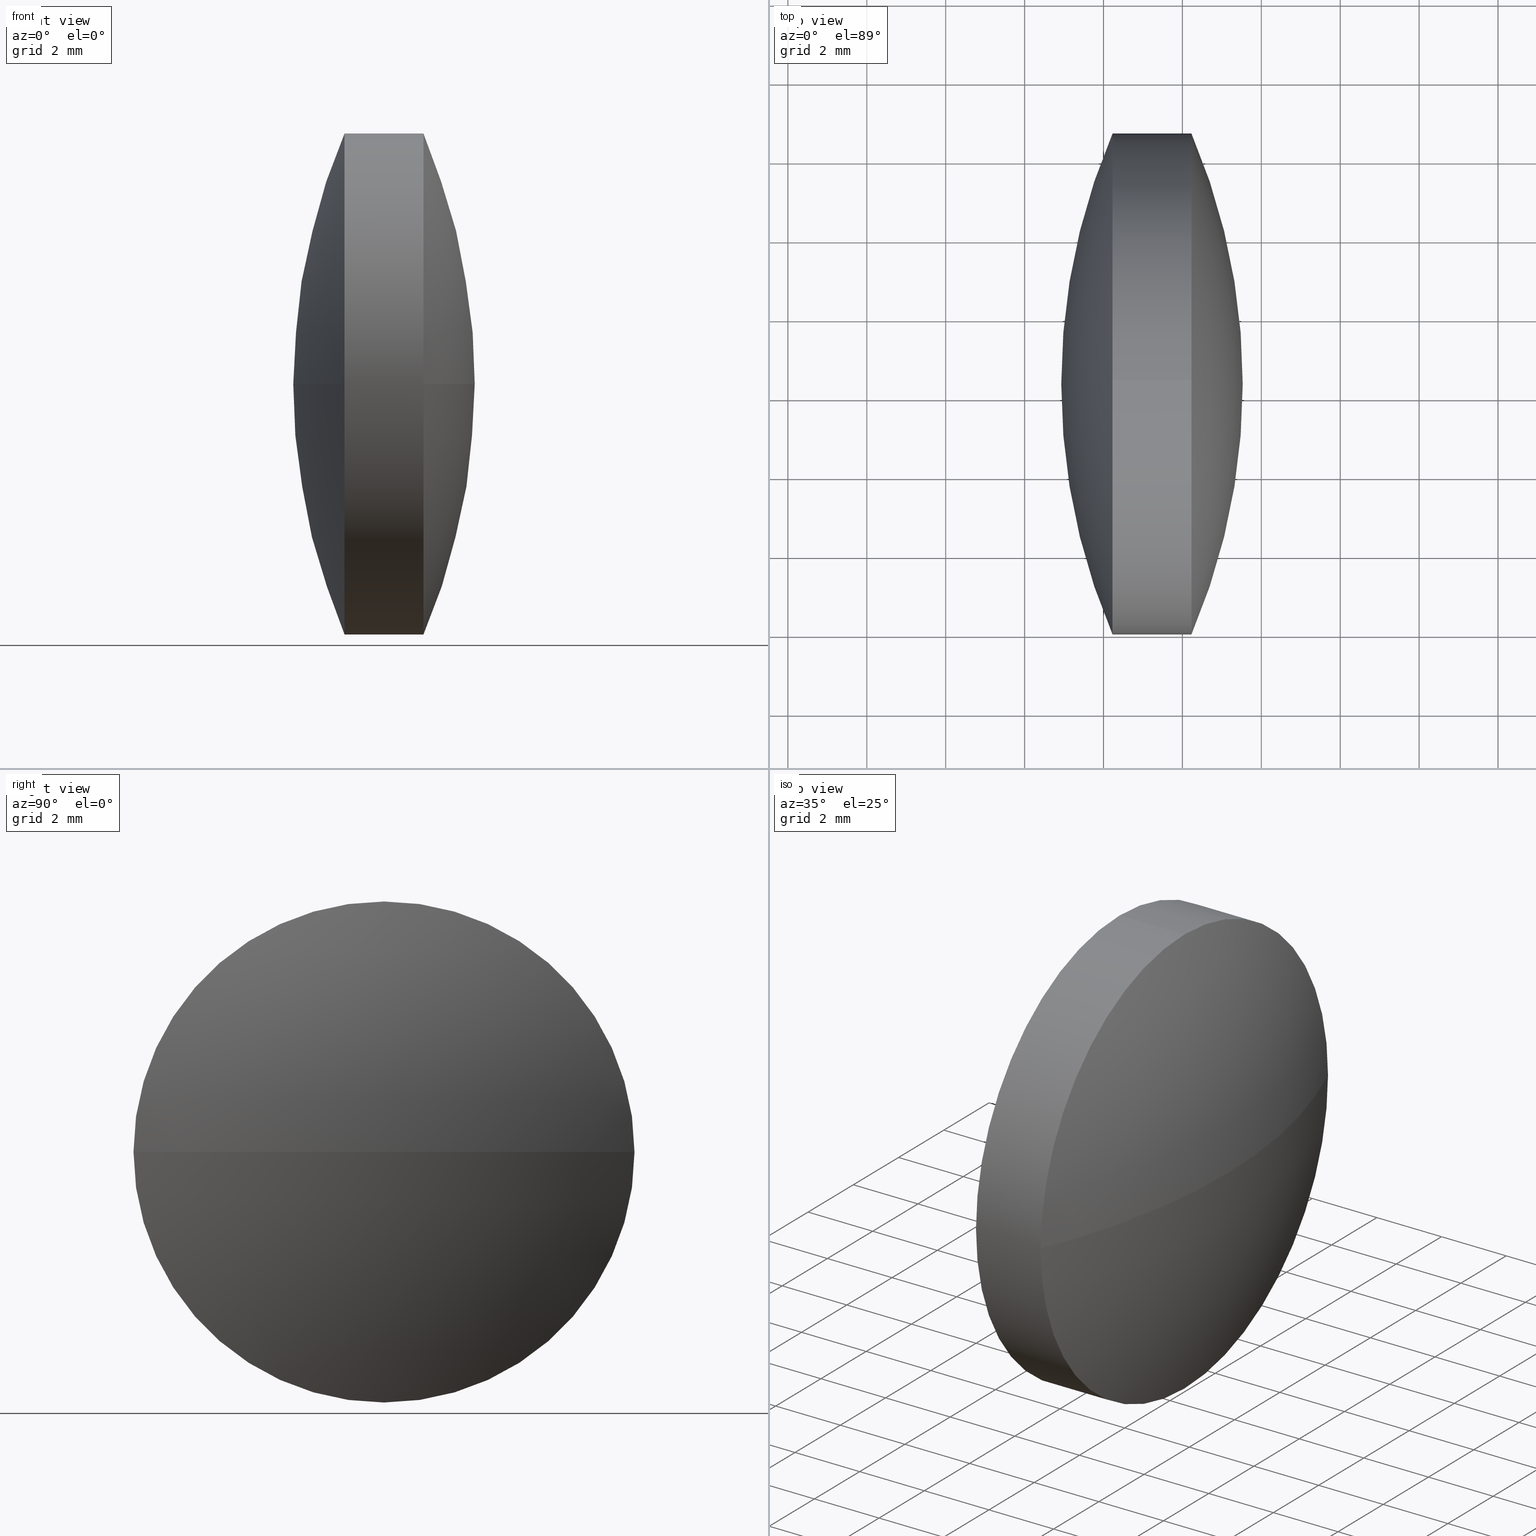
[diagram: canonical four-view strip — front | top / right | iso, engineering-drawing reading convention]
A machine part, canonical four-view strip (front | top / right | iso — engineering-drawing reading convention). The complete STEP part file that produces these views, byte-faithful:
ISO-10303-21;
HEADER;
FILE_DESCRIPTION (( 'STEP AP203' ),
    '1' );
FILE_NAME ('110137.STEP',
    '2019-07-08T08:47:33',
    ( '' ),
    ( '' ),
    'SwSTEP 2.0',
    'SolidWorks 2016',
    '' );
FILE_SCHEMA (( 'CONFIG_CONTROL_DESIGN' ));
ENDSEC;

DATA;
#1 = AXIS2_PLACEMENT_3D ( 'NONE', #263, #33, #41 ) ;
#2 = CARTESIAN_POINT ( 'NONE',  ( 42.22906260161698100, 24.30805651159239000, 0.0000000000000000000 ) ) ;
#3 = ORIENTED_EDGE ( 'NONE', *, *, #202, .F. ) ;
#4 = DATE_TIME_ROLE ( 'creation_date' ) ;
#5 = APPROVAL_STATUS ( 'not_yet_approved' ) ;
#6 = FACE_OUTER_BOUND ( 'NONE', #282, .T. ) ;
#7 = ORIENTED_EDGE ( 'NONE', *, *, #13, .F. ) ;
#8 = APPLICATION_CONTEXT ( 'configuration controlled 3d designs of mechanical parts and assemblies' ) ;
#9 = CC_DESIGN_PERSON_AND_ORGANIZATION_ASSIGNMENT ( #210, #39, ( #246 ) ) ;
#10 = PERSON_AND_ORGANIZATION_ROLE ( 'creator' ) ;
#11 = AXIS2_PLACEMENT_3D ( 'NONE', #108, #128, #316 ) ;
#12 = ORIENTED_EDGE ( 'NONE', *, *, #202, .T. ) ;
#13 = EDGE_CURVE ( 'NONE', #26, #312, #109, .T. ) ;
#14 = VECTOR ( 'NONE', #30, 1000.000000000000000 ) ;
#15 = DIRECTION ( 'NONE',  ( -1.000000000000000000, 0.0000000000000000000, 0.0000000000000000000 ) ) ;
#16 = CC_DESIGN_PERSON_AND_ORGANIZATION_ASSIGNMENT ( #189, #188, ( #110 ) ) ;
#17 = ORIENTED_EDGE ( 'NONE', *, *, #117, .F. ) ;
#18 = DIRECTION ( 'NONE',  ( 0.0000000000000000000, 0.0000000000000000000, 1.000000000000000000 ) ) ;
#19 = SPHERICAL_SURFACE ( 'NONE', #166, 16.15938865267676400 ) ;
#20 = CARTESIAN_POINT ( 'NONE',  ( 44.22913117304555200, 24.30805651159239000, 0.0000000000000000000 ) ) ;
#21 = DATE_AND_TIME ( #178, #201 ) ;
#22 = DIRECTION ( 'NONE',  ( -1.000000000000000000, -0.0000000000000000000, -0.0000000000000000000 ) ) ;
#23 = EDGE_CURVE ( 'NONE', #148, #288, #187, .T. ) ;
#24 = FACE_OUTER_BOUND ( 'NONE', #50, .T. ) ;
#25 = CARTESIAN_POINT ( 'NONE',  ( 29.36967823465456800, 24.30805651159240100, 0.0000000000000000000 ) ) ;
#26 = VERTEX_POINT ( 'NONE', #286 ) ;
#27 = ADVANCED_FACE ( 'NONE', ( #311 ), #65, .T. ) ;
#28 = CARTESIAN_POINT ( 'NONE',  ( 57.08851554000803900, 24.30805651159238700, 0.0000000000000000000 ) ) ;
#29 = ADVANCED_FACE ( 'NONE', ( #24 ), #198, .T. ) ;
#30 = DIRECTION ( 'NONE',  ( -1.000000000000000000, -0.0000000000000000000, -0.0000000000000000000 ) ) ;
#31 = ORIENTED_EDGE ( 'NONE', *, *, #337, .F. ) ;
#32 = AXIS2_PLACEMENT_3D ( 'NONE', #25, #338, #254 ) ;
#33 = DIRECTION ( 'NONE',  ( 0.0000000000000000000, 0.0000000000000000000, 1.000000000000000000 ) ) ;
#34 = CIRCLE ( 'NONE', #73, 16.15938865267670000 ) ;
#35 = CARTESIAN_POINT ( 'NONE',  ( 42.22906260161698100, 24.30805651159239000, 0.0000000000000000000 ) ) ;
#36 = APPROVAL_PERSON_ORGANIZATION ( #75, #331, #267 ) ;
#37 = LOCAL_TIME ( 16, 47, 33.00000000000000000, #79 ) ;
#38 = PERSON_AND_ORGANIZATION_ROLE ( 'creator' ) ;
#39 = PERSON_AND_ORGANIZATION_ROLE ( 'creator' ) ;
#40 = VERTEX_POINT ( 'NONE', #283 ) ;
#41 = DIRECTION ( 'NONE',  ( 1.000000000000000000, 0.0000000000000000000, 0.0000000000000000000 ) ) ;
#42 = APPROVAL_ROLE ( '' ) ;
#43 = AXIS2_PLACEMENT_3D ( 'NONE', #258, #88, #57 ) ;
#44 = SECURITY_CLASSIFICATION ( '', '', #214 ) ;
#45 = APPROVAL_STATUS ( 'not_yet_approved' ) ;
#46 = CC_DESIGN_PERSON_AND_ORGANIZATION_ASSIGNMENT ( #299, #38, ( #101 ) ) ;
#47 = CALENDAR_DATE ( 2019, 8, 7 ) ;
#48 = CC_DESIGN_SECURITY_CLASSIFICATION ( #138, ( #246 ) ) ;
#49 = CIRCLE ( 'NONE', #173, 6.349999999999997900 ) ;
#50 = EDGE_LOOP ( 'NONE', ( #199, #305, #12, #85, #142, #278 ) ) ;
#51 = EDGE_CURVE ( 'NONE', #212, #288, #121, .T. ) ;
#52 = CC_DESIGN_DATE_AND_TIME_ASSIGNMENT ( #272, #162, ( #138 ) ) ;
#53 = APPROVAL_DATE_TIME ( #120, #140 ) ;
#54 = DIRECTION ( 'NONE',  ( 0.0000000000000000000, 0.0000000000000000000, -1.000000000000000000 ) ) ;
#55 = CARTESIAN_POINT ( 'NONE',  ( 29.36967823465456800, 24.30805651159240100, 0.0000000000000000000 ) ) ;
#56 = CALENDAR_DATE ( 2019, 8, 7 ) ;
#57 = DIRECTION ( 'NONE',  ( 0.0000000000000000000, 0.0000000000000000000, 1.000000000000000000 ) ) ;
#58 = AXIS2_PLACEMENT_3D ( 'NONE', #35, #111, #261 ) ;
#59 = ADVANCED_FACE ( 'NONE', ( #96 ), #174, .T. ) ;
#60 = EDGE_LOOP ( 'NONE', ( #218, #242, #31, #3 ) ) ;
#61 = CARTESIAN_POINT ( 'NONE',  ( 44.22913117304555200, 30.65805651159239500, 7.776507174585687200E-016 ) ) ;
#62 = COORDINATED_UNIVERSAL_TIME_OFFSET ( 8, 0, .AHEAD. ) ;
#63 = CARTESIAN_POINT ( 'NONE',  ( 44.22913117304555200, 24.30805651159239000, 0.0000000000000000000 ) ) ;
#64 = DIRECTION ( 'NONE',  ( -1.000000000000000000, -0.0000000000000000000, -0.0000000000000000000 ) ) ;
#65 = SPHERICAL_SURFACE ( 'NONE', #280, 16.15938865267670000 ) ;
#66 = APPROVAL_ROLE ( '' ) ;
#67 = CALENDAR_DATE ( 2019, 8, 7 ) ;
#68 = EDGE_CURVE ( 'NONE', #155, #40, #170, .T. ) ;
#69 =( NAMED_UNIT ( * ) PLANE_ANGLE_UNIT ( ) SI_UNIT ( $, .RADIAN. ) );
#70 = SPHERICAL_SURFACE ( 'NONE', #98, 16.15938865267676400 ) ;
#71 = PRODUCT_DEFINITION_SHAPE ( 'NONE', 'NONE',  #110 ) ;
#72 = PERSON_AND_ORGANIZATION ( #252, #177 ) ;
#73 = AXIS2_PLACEMENT_3D ( 'NONE', #319, #205, #344 ) ;
#74 = CC_DESIGN_APPROVAL ( #306, ( #138 ) ) ;
#75 = PERSON_AND_ORGANIZATION ( #252, #177 ) ;
#76 = ORIENTED_EDGE ( 'NONE', *, *, #23, .F. ) ;
#77 = AXIS2_PLACEMENT_3D ( 'NONE', #181, #64, #158 ) ;
#78 = DATE_AND_TIME ( #47, #145 ) ;
#79 = COORDINATED_UNIVERSAL_TIME_OFFSET ( 8, 0, .AHEAD. ) ;
#80 = CARTESIAN_POINT ( 'NONE',  ( 39.65270067541857900, 24.30805651159239000, 0.0000000000000000000 ) ) ;
#81 = CC_DESIGN_PERSON_AND_ORGANIZATION_ASSIGNMENT ( #276, #116, ( #101 ) ) ;
#82 = ORIENTED_EDGE ( 'NONE', *, *, #151, .T. ) ;
#83 = DIRECTION ( 'NONE',  ( 0.0000000000000000000, 0.0000000000000000000, 1.000000000000000000 ) ) ;
#84 = CYLINDRICAL_SURFACE ( 'NONE', #137, 6.349999999999997900 ) ;
#85 = ORIENTED_EDGE ( 'NONE', *, *, #156, .T. ) ;
#86 = DIRECTION ( 'NONE',  ( -0.0000000000000000000, 0.0000000000000000000, -1.000000000000000000 ) ) ;
#87 = ADVANCED_FACE ( 'NONE', ( #152 ), #84, .T. ) ;
#88 = DIRECTION ( 'NONE',  ( -1.000000000000000000, -0.0000000000000000000, -0.0000000000000000000 ) ) ;
#89 = PERSON_AND_ORGANIZATION ( #252, #177 ) ;
#90 = CARTESIAN_POINT ( 'NONE',  ( 42.22906260161698100, 24.30805651159239000, -6.349999999999997900 ) ) ;
#91 = CARTESIAN_POINT ( 'NONE',  ( 44.22913117304555200, 24.30805651159239000, 0.0000000000000000000 ) ) ;
#92 = LINE ( 'NONE', #130, #122 ) ;
#93 = APPROVAL_STATUS ( 'not_yet_approved' ) ;
#94 = CC_DESIGN_PERSON_AND_ORGANIZATION_ASSIGNMENT ( #72, #118, ( #275 ) ) ;
#95 = DIRECTION ( 'NONE',  ( 1.000000000000000000, 0.0000000000000000000, 0.0000000000000000000 ) ) ;
#96 = FACE_OUTER_BOUND ( 'NONE', #60, .T. ) ;
#97 = DATE_TIME_ROLE ( 'creation_date' ) ;
#98 = AXIS2_PLACEMENT_3D ( 'NONE', #159, #86, #233 ) ;
#99 = COORDINATED_UNIVERSAL_TIME_OFFSET ( 8, 0, .AHEAD. ) ;
#100 = EDGE_LOOP ( 'NONE', ( #193, #206, #76, #131 ) ) ;
#101 = PRODUCT_DEFINITION_FORMATION_WITH_SPECIFIED_SOURCE ( '�κ�', '', #310, .NOT_KNOWN. ) ;
#102 = APPROVAL_DATE_TIME ( #250, #313 ) ;
#103 = APPROVAL_PERSON_ORGANIZATION ( #185, #140, #164 ) ;
#104 = ORIENTED_EDGE ( 'NONE', *, *, #117, .T. ) ;
#105 = CC_DESIGN_PERSON_AND_ORGANIZATION_ASSIGNMENT ( #273, #216, ( #246 ) ) ;
#106 = COORDINATED_UNIVERSAL_TIME_OFFSET ( 8, 0, .AHEAD. ) ;
#107 = PRODUCT_DEFINITION ( 'δ֪', '', #246, #207 ) ;
#108 = CARTESIAN_POINT ( 'NONE',  ( 57.08851554000803900, 24.30805651159238700, 0.0000000000000000000 ) ) ;
#109 = CIRCLE ( 'NONE', #112, 6.349999999999997900 ) ;
#110 = PRODUCT_DEFINITION ( 'δ֪', '', #101, #314 ) ;
#111 = DIRECTION ( 'NONE',  ( -1.000000000000000000, -0.0000000000000000000, -0.0000000000000000000 ) ) ;
#112 = AXIS2_PLACEMENT_3D ( 'NONE', #228, #339, #281 ) ;
#113 = CARTESIAN_POINT ( 'NONE',  ( 42.22906260161698100, 17.95805651159239200, -7.776507174585689200E-016 ) ) ;
#114 = APPROVAL_PERSON_ORGANIZATION ( #315, #257, #219 ) ;
#115 =( NAMED_UNIT ( * ) SI_UNIT ( $, .STERADIAN. ) SOLID_ANGLE_UNIT ( ) );
#116 = PERSON_AND_ORGANIZATION_ROLE ( 'design_supplier' ) ;
#117 = EDGE_CURVE ( 'NONE', #26, #40, #334, .T. ) ;
#118 = PERSON_AND_ORGANIZATION_ROLE ( 'design_owner' ) ;
#119 = EDGE_CURVE ( 'NONE', #155, #237, #274, .T. ) ;
#120 = DATE_AND_TIME ( #332, #124 ) ;
#121 = CIRCLE ( 'NONE', #123, 16.15938865267670000 ) ;
#122 = VECTOR ( 'NONE', #161, 1000.000000000000000 ) ;
#123 = AXIS2_PLACEMENT_3D ( 'NONE', #125, #54, #15 ) ;
#124 = LOCAL_TIME ( 16, 47, 33.00000000000000000, #163 ) ;
#125 = CARTESIAN_POINT ( 'NONE',  ( 29.36967823465456800, 24.30805651159240100, 0.0000000000000000000 ) ) ;
#126 = ORIENTED_EDGE ( 'NONE', *, *, #197, .F. ) ;
#127 = AXIS2_PLACEMENT_3D ( 'NONE', #63, #238, #323 ) ;
#128 = DIRECTION ( 'NONE',  ( 0.0000000000000000000, 1.224646799147353200E-016, -1.000000000000000000 ) ) ;
#129 = EDGE_CURVE ( 'NONE', #312, #155, #192, .T. ) ;
#130 = CARTESIAN_POINT ( 'NONE',  ( 39.65270067541857900, 24.30805651159239000, 6.349999999999997900 ) ) ;
#131 = ORIENTED_EDGE ( 'NONE', *, *, #168, .F. ) ;
#132 = ADVANCED_FACE ( 'NONE', ( #6 ), #70, .T. ) ;
#133 = CARTESIAN_POINT ( 'NONE',  ( 45.52906688733126800, 24.30805651159240100, 0.0000000000000000000 ) ) ;
#134 = CIRCLE ( 'NONE', #262, 6.349999999999997900 ) ;
#135 = APPROVAL_PERSON_ORGANIZATION ( #290, #306, #66 ) ;
#136 = CALENDAR_DATE ( 2019, 8, 7 ) ;
#137 = AXIS2_PLACEMENT_3D ( 'NONE', #80, #204, #83 ) ;
#138 = SECURITY_CLASSIFICATION ( '', '', #266 ) ;
#139 = MECHANICAL_CONTEXT ( 'NONE', #8, 'mechanical' ) ;
#140 = APPROVAL ( #165, 'δָ��' ) ;
#141 = APPLICATION_CONTEXT ( 'configuration controlled 3d designs of mechanical parts and assemblies' ) ;
#142 = ORIENTED_EDGE ( 'NONE', *, *, #119, .F. ) ;
#143 = AXIS2_PLACEMENT_3D ( 'NONE', #265, #234, #295 ) ;
#144 = APPROVAL_DATE_TIME ( #172, #306 ) ;
#145 = LOCAL_TIME ( 16, 47, 33.00000000000000000, #209 ) ;
#146 = PERSON_AND_ORGANIZATION ( #252, #177 ) ;
#147 = APPROVAL ( #93, 'δָ��' ) ;
#148 = VERTEX_POINT ( 'NONE', #293 ) ;
#149 = PERSON_AND_ORGANIZATION ( #252, #177 ) ;
#150 = PERSON_AND_ORGANIZATION ( #252, #177 ) ;
#151 = EDGE_CURVE ( 'NONE', #148, #312, #225, .T. ) ;
#152 = FACE_OUTER_BOUND ( 'NONE', #259, .T. ) ;
#153 = CALENDAR_DATE ( 2019, 8, 7 ) ;
#154 = DIRECTION ( 'NONE',  ( 0.0000000000000000000, 0.0000000000000000000, 1.000000000000000000 ) ) ;
#155 = VERTEX_POINT ( 'NONE', #113 ) ;
#156 = EDGE_CURVE ( 'NONE', #294, #237, #92, .T. ) ;
#157 = COORDINATED_UNIVERSAL_TIME_OFFSET ( 8, 0, .AHEAD. ) ;
#158 = DIRECTION ( 'NONE',  ( 0.0000000000000000000, 0.0000000000000000000, 1.000000000000000000 ) ) ;
#159 = CARTESIAN_POINT ( 'NONE',  ( 57.08851554000803900, 24.30805651159238700, 0.0000000000000000000 ) ) ;
#160 = CLOSED_SHELL ( 'NONE', ( #87, #59, #132, #260, #27, #29 ) ) ;
#161 = DIRECTION ( 'NONE',  ( -1.000000000000000000, -0.0000000000000000000, -0.0000000000000000000 ) ) ;
#162 = DATE_TIME_ROLE ( 'classification_date' ) ;
#163 = COORDINATED_UNIVERSAL_TIME_OFFSET ( 8, 0, .AHEAD. ) ;
#164 = APPROVAL_ROLE ( '' ) ;
#165 = APPROVAL_STATUS ( 'not_yet_approved' ) ;
#166 = AXIS2_PLACEMENT_3D ( 'NONE', #28, #211, #182 ) ;
#167 = ORIENTED_EDGE ( 'NONE', *, *, #129, .T. ) ;
#168 = EDGE_CURVE ( 'NONE', #183, #148, #297, .T. ) ;
#169 = APPROVAL_PERSON_ORGANIZATION ( #239, #147, #42 ) ;
#170 = CIRCLE ( 'NONE', #11, 16.15938865267676400 ) ;
#171 = ORIENTED_EDGE ( 'NONE', *, *, #119, .T. ) ;
#172 = DATE_AND_TIME ( #326, #215 ) ;
#173 = AXIS2_PLACEMENT_3D ( 'NONE', #2, #236, #213 ) ;
#174 = SPHERICAL_SURFACE ( 'NONE', #32, 16.15938865267670000 ) ;
#175 = ORIENTED_EDGE ( 'NONE', *, *, #13, .T. ) ;
#176 = CC_DESIGN_PERSON_AND_ORGANIZATION_ASSIGNMENT ( #89, #325, ( #44 ) ) ;
#177 = ORGANIZATION ( 'δָ��', 'δָ��', '' ) ;
#178 = CALENDAR_DATE ( 2019, 8, 7 ) ;
#179 = CC_DESIGN_PERSON_AND_ORGANIZATION_ASSIGNMENT ( #149, #240, ( #310 ) ) ;
#180 = DIRECTION ( 'NONE',  ( -1.000000000000000000, -0.0000000000000000000, -0.0000000000000000000 ) ) ;
#181 = CARTESIAN_POINT ( 'NONE',  ( 44.22913117304555200, 24.30805651159239000, 0.0000000000000000000 ) ) ;
#182 = DIRECTION ( 'NONE',  ( 0.0000000000000000000, 1.000000000000000000, 0.0000000000000000000 ) ) ;
#183 = VERTEX_POINT ( 'NONE', #61 ) ;
#184 = CARTESIAN_POINT ( 'NONE',  ( 0.0000000000000000000, 0.0000000000000000000, 0.0000000000000000000 ) ) ;
#185 = PERSON_AND_ORGANIZATION ( #252, #177 ) ;
#186 = APPLICATION_CONTEXT ( 'configuration controlled 3d designs of mechanical parts and assemblies' ) ;
#187 = CIRCLE ( 'NONE', #289, 6.349999999999997900 ) ;
#188 = PERSON_AND_ORGANIZATION_ROLE ( 'creator' ) ;
#189 = PERSON_AND_ORGANIZATION ( #252, #177 ) ;
#190 = CC_DESIGN_PERSON_AND_ORGANIZATION_ASSIGNMENT ( #321, #10, ( #107 ) ) ;
#191 = APPROVAL_ROLE ( '' ) ;
#192 = CIRCLE ( 'NONE', #58, 6.349999999999997900 ) ;
#193 = ORIENTED_EDGE ( 'NONE', *, *, #270, .F. ) ;
#194 = APPROVAL_STATUS ( 'not_yet_approved' ) ;
#195 = APPROVAL_PERSON_ORGANIZATION ( #150, #313, #191 ) ;
#196 = CC_DESIGN_APPROVAL ( #313, ( #101 ) ) ;
#197 = EDGE_CURVE ( 'NONE', #237, #26, #49, .T. ) ;
#198 = CYLINDRICAL_SURFACE ( 'NONE', #248, 6.349999999999997900 ) ;
#199 = ORIENTED_EDGE ( 'NONE', *, *, #151, .F. ) ;
#200 = CC_DESIGN_APPROVAL ( #140, ( #107 ) ) ;
#201 = LOCAL_TIME ( 16, 47, 33.00000000000000000, #251 ) ;
#202 = EDGE_CURVE ( 'NONE', #288, #294, #134, .T. ) ;
#203 = CC_DESIGN_DATE_AND_TIME_ASSIGNMENT ( #78, #301, ( #44 ) ) ;
#204 = DIRECTION ( 'NONE',  ( -1.000000000000000000, -0.0000000000000000000, -0.0000000000000000000 ) ) ;
#205 = DIRECTION ( 'NONE',  ( 0.0000000000000000000, -1.224646799147353200E-016, 1.000000000000000000 ) ) ;
#206 = ORIENTED_EDGE ( 'NONE', *, *, #51, .T. ) ;
#207 = DESIGN_CONTEXT ( 'detailed design', #245, 'design' ) ;
#208 = CARTESIAN_POINT ( 'NONE',  ( 44.22913117304555200, 24.30805651159239000, 6.349999999999997900 ) ) ;
#209 = COORDINATED_UNIVERSAL_TIME_OFFSET ( 8, 0, .AHEAD. ) ;
#210 = PERSON_AND_ORGANIZATION ( #252, #177 ) ;
#211 = DIRECTION ( 'NONE',  ( -0.0000000000000000000, 0.0000000000000000000, -1.000000000000000000 ) ) ;
#212 = VERTEX_POINT ( 'NONE', #133 ) ;
#213 = DIRECTION ( 'NONE',  ( 0.0000000000000000000, 0.0000000000000000000, 1.000000000000000000 ) ) ;
#214 = SECURITY_CLASSIFICATION_LEVEL ( 'unclassified' ) ;
#215 = LOCAL_TIME ( 16, 47, 33.00000000000000000, #277 ) ;
#216 = PERSON_AND_ORGANIZATION_ROLE ( 'design_supplier' ) ;
#217 =( LENGTH_UNIT ( ) NAMED_UNIT ( * ) SI_UNIT ( .MILLI., .METRE. ) );
#218 = ORIENTED_EDGE ( 'NONE', *, *, #51, .F. ) ;
#219 = APPROVAL_ROLE ( '' ) ;
#220 = LOCAL_TIME ( 16, 47, 33.00000000000000000, #99 ) ;
#221 =( GEOMETRIC_REPRESENTATION_CONTEXT ( 3 ) GLOBAL_UNCERTAINTY_ASSIGNED_CONTEXT ( ( #244 ) ) GLOBAL_UNIT_ASSIGNED_CONTEXT ( ( #217, #69, #115 ) ) REPRESENTATION_CONTEXT ( 'NONE', 'WORKASPACE' ) );
#222 = CIRCLE ( 'NONE', #127, 6.349999999999997900 ) ;
#223 = CC_DESIGN_DATE_AND_TIME_ASSIGNMENT ( #21, #4, ( #107 ) ) ;
#224 = MANIFOLD_SOLID_BREP ( '��ת1', #160 ) ;
#225 = LINE ( 'NONE', #318, #14 ) ;
#226 = ORIENTED_EDGE ( 'NONE', *, *, #156, .F. ) ;
#227 = CC_DESIGN_APPROVAL ( #147, ( #44 ) ) ;
#228 = CARTESIAN_POINT ( 'NONE',  ( 42.22906260161698100, 24.30805651159239000, 0.0000000000000000000 ) ) ;
#229 = DATE_AND_TIME ( #67, #268 ) ;
#230 = DATE_AND_TIME ( #309, #37 ) ;
#231 = CARTESIAN_POINT ( 'NONE',  ( 39.65270067541857900, 24.30805651159239000, 0.0000000000000000000 ) ) ;
#232 = EDGE_LOOP ( 'NONE', ( #329, #171, #342, #104 ) ) ;
#233 = DIRECTION ( 'NONE',  ( 0.0000000000000000000, 1.000000000000000000, 0.0000000000000000000 ) ) ;
#234 = DIRECTION ( 'NONE',  ( -0.0000000000000000000, 0.0000000000000000000, 1.000000000000000000 ) ) ;
#235 = CC_DESIGN_APPROVAL ( #331, ( #110 ) ) ;
#236 = DIRECTION ( 'NONE',  ( -1.000000000000000000, -0.0000000000000000000, -0.0000000000000000000 ) ) ;
#237 = VERTEX_POINT ( 'NONE', #341 ) ;
#238 = DIRECTION ( 'NONE',  ( -1.000000000000000000, -0.0000000000000000000, -0.0000000000000000000 ) ) ;
#239 = PERSON_AND_ORGANIZATION ( #252, #177 ) ;
#240 = PERSON_AND_ORGANIZATION_ROLE ( 'design_owner' ) ;
#241 = DATE_AND_TIME ( #300, #308 ) ;
#242 = ORIENTED_EDGE ( 'NONE', *, *, #270, .T. ) ;
#243 = PERSON_AND_ORGANIZATION_ROLE ( 'classification_officer' ) ;
#244 = UNCERTAINTY_MEASURE_WITH_UNIT (LENGTH_MEASURE( 1.000000000000000100E-005 ), #217, 'distance_accuracy_value', 'NONE');
#245 = APPLICATION_CONTEXT ( 'configuration controlled 3d designs of mechanical parts and assemblies' ) ;
#246 = PRODUCT_DEFINITION_FORMATION_WITH_SPECIFIED_SOURCE ( '�κ�', '', #275, .NOT_KNOWN. ) ;
#247 = ORIENTED_EDGE ( 'NONE', *, *, #337, .T. ) ;
#248 = AXIS2_PLACEMENT_3D ( 'NONE', #231, #180, #154 ) ;
#249 = CC_DESIGN_PERSON_AND_ORGANIZATION_ASSIGNMENT ( #146, #243, ( #138 ) ) ;
#250 = DATE_AND_TIME ( #136, #284 ) ;
#251 = COORDINATED_UNIVERSAL_TIME_OFFSET ( 8, 0, .AHEAD. ) ;
#252 = PERSON ( 'δָ��', 'δָ��', 'δָ��', ('δָ��'), ('δָ��'), ('δָ��') ) ;
#253 = FACE_OUTER_BOUND ( 'NONE', #232, .T. ) ;
#254 = DIRECTION ( 'NONE',  ( 0.0000000000000000000, -1.000000000000000000, 0.0000000000000000000 ) ) ;
#255 = DIRECTION ( 'NONE',  ( 0.0000000000000000000, -1.000000000000000000, 0.0000000000000000000 ) ) ;
#256 = DIRECTION ( 'NONE',  ( 0.0000000000000000000, 0.0000000000000000000, 1.000000000000000000 ) ) ;
#257 = APPROVAL ( #45, 'δָ��' ) ;
#258 = CARTESIAN_POINT ( 'NONE',  ( 42.22906260161698100, 24.30805651159239000, 0.0000000000000000000 ) ) ;
#259 = EDGE_LOOP ( 'NONE', ( #335, #82, #7, #126, #226, #247 ) ) ;
#260 = ADVANCED_FACE ( 'NONE', ( #253 ), #19, .T. ) ;
#261 = DIRECTION ( 'NONE',  ( 0.0000000000000000000, 0.0000000000000000000, 1.000000000000000000 ) ) ;
#262 = AXIS2_PLACEMENT_3D ( 'NONE', #91, #287, #317 ) ;
#263 = CARTESIAN_POINT ( 'NONE',  ( 0.0000000000000000000, 0.0000000000000000000, 0.0000000000000000000 ) ) ;
#264 = APPROVAL_DATE_TIME ( #241, #147 ) ;
#265 = CARTESIAN_POINT ( 'NONE',  ( 57.08851554000803900, 24.30805651159238700, 0.0000000000000000000 ) ) ;
#266 = SECURITY_CLASSIFICATION_LEVEL ( 'unclassified' ) ;
#267 = APPROVAL_ROLE ( '' ) ;
#268 = LOCAL_TIME ( 16, 47, 33.00000000000000000, #320 ) ;
#269 = APPROVAL_STATUS ( 'not_yet_approved' ) ;
#270 = EDGE_CURVE ( 'NONE', #212, #183, #34, .T. ) ;
#271 = ORIENTED_EDGE ( 'NONE', *, *, #68, .T. ) ;
#272 = DATE_AND_TIME ( #56, #285 ) ;
#273 = PERSON_AND_ORGANIZATION ( #252, #177 ) ;
#274 = CIRCLE ( 'NONE', #43, 6.349999999999997900 ) ;
#275 = PRODUCT ( '110137', '110137', '', ( #328 ) ) ;
#276 = PERSON_AND_ORGANIZATION ( #252, #177 ) ;
#277 = COORDINATED_UNIVERSAL_TIME_OFFSET ( 8, 0, .AHEAD. ) ;
#278 = ORIENTED_EDGE ( 'NONE', *, *, #129, .F. ) ;
#279 = APPROVAL_DATE_TIME ( #230, #257 ) ;
#280 = AXIS2_PLACEMENT_3D ( 'NONE', #55, #18, #255 ) ;
#281 = DIRECTION ( 'NONE',  ( 0.0000000000000000000, 0.0000000000000000000, 1.000000000000000000 ) ) ;
#282 = EDGE_LOOP ( 'NONE', ( #175, #167, #271, #17 ) ) ;
#283 = CARTESIAN_POINT ( 'NONE',  ( 40.92912688733127200, 24.30805651159238700, 0.0000000000000000000 ) ) ;
#284 = LOCAL_TIME ( 16, 47, 33.00000000000000000, #62 ) ;
#285 = LOCAL_TIME ( 16, 47, 33.00000000000000000, #157 ) ;
#286 = CARTESIAN_POINT ( 'NONE',  ( 42.22906260161698100, 30.65805651159238800, 0.0000000000000000000 ) ) ;
#287 = DIRECTION ( 'NONE',  ( -1.000000000000000000, -0.0000000000000000000, -0.0000000000000000000 ) ) ;
#288 = VERTEX_POINT ( 'NONE', #291 ) ;
#289 = AXIS2_PLACEMENT_3D ( 'NONE', #20, #22, #256 ) ;
#290 = PERSON_AND_ORGANIZATION ( #252, #177 ) ;
#291 = CARTESIAN_POINT ( 'NONE',  ( 44.22913117304555200, 17.95805651159239600, 0.0000000000000000000 ) ) ;
#292 = CC_DESIGN_DATE_AND_TIME_ASSIGNMENT ( #345, #97, ( #110 ) ) ;
#293 = CARTESIAN_POINT ( 'NONE',  ( 44.22913117304555200, 24.30805651159239000, -6.349999999999997900 ) ) ;
#294 = VERTEX_POINT ( 'NONE', #208 ) ;
#295 = DIRECTION ( 'NONE',  ( 1.000000000000000000, 0.0000000000000000000, 0.0000000000000000000 ) ) ;
#296 = PRODUCT_DEFINITION_SHAPE ( 'NONE', 'NONE',  #107 ) ;
#297 = CIRCLE ( 'NONE', #77, 6.349999999999997900 ) ;
#298 = APPLICATION_PROTOCOL_DEFINITION ( 'international standard', 'config_control_design', 1994, #8 ) ;
#299 = PERSON_AND_ORGANIZATION ( #252, #177 ) ;
#300 = CALENDAR_DATE ( 2019, 8, 7 ) ;
#301 = DATE_TIME_ROLE ( 'classification_date' ) ;
#302 = DIRECTION ( 'NONE',  ( 0.0000000000000000000, 0.0000000000000000000, 1.000000000000000000 ) ) ;
#303 = CC_DESIGN_APPROVAL ( #257, ( #246 ) ) ;
#304 = APPLICATION_PROTOCOL_DEFINITION ( 'international standard', 'config_control_design', 1994, #186 ) ;
#305 = ORIENTED_EDGE ( 'NONE', *, *, #23, .T. ) ;
#306 = APPROVAL ( #269, 'δָ��' ) ;
#307 = CC_DESIGN_SECURITY_CLASSIFICATION ( #44, ( #101 ) ) ;
#308 = LOCAL_TIME ( 16, 47, 33.00000000000000000, #106 ) ;
#309 = CALENDAR_DATE ( 2019, 8, 7 ) ;
#310 = PRODUCT ( '110137', '110137', '', ( #139 ) ) ;
#311 = FACE_OUTER_BOUND ( 'NONE', #100, .T. ) ;
#312 = VERTEX_POINT ( 'NONE', #90 ) ;
#313 = APPROVAL ( #5, 'δָ��' ) ;
#314 = DESIGN_CONTEXT ( 'detailed design', #186, 'design' ) ;
#315 = PERSON_AND_ORGANIZATION ( #252, #177 ) ;
#316 = DIRECTION ( 'NONE',  ( 0.0000000000000000000, 1.000000000000000000, 1.224646799147353200E-016 ) ) ;
#317 = DIRECTION ( 'NONE',  ( 0.0000000000000000000, 0.0000000000000000000, 1.000000000000000000 ) ) ;
#318 = CARTESIAN_POINT ( 'NONE',  ( 39.65270067541857900, 24.30805651159239000, -6.349999999999997900 ) ) ;
#319 = CARTESIAN_POINT ( 'NONE',  ( 29.36967823465456800, 24.30805651159240100, 0.0000000000000000000 ) ) ;
#320 = COORDINATED_UNIVERSAL_TIME_OFFSET ( 8, 0, .AHEAD. ) ;
#321 = PERSON_AND_ORGANIZATION ( #252, #177 ) ;
#322 = PRODUCT_RELATED_PRODUCT_CATEGORY ( 'detail', '', ( #310 ) ) ;
#323 = DIRECTION ( 'NONE',  ( 0.0000000000000000000, 0.0000000000000000000, 1.000000000000000000 ) ) ;
#324 = APPLICATION_PROTOCOL_DEFINITION ( 'international standard', 'config_control_design', 1994, #141 ) ;
#325 = PERSON_AND_ORGANIZATION_ROLE ( 'classification_officer' ) ;
#326 = CALENDAR_DATE ( 2019, 8, 7 ) ;
#327 = APPLICATION_PROTOCOL_DEFINITION ( 'international standard', 'config_control_design', 1994, #245 ) ;
#328 = MECHANICAL_CONTEXT ( 'NONE', #141, 'mechanical' ) ;
#329 = ORIENTED_EDGE ( 'NONE', *, *, #68, .F. ) ;
#330 = ADVANCED_BREP_SHAPE_REPRESENTATION ( '110137', ( #224, #1 ), #221 ) ;
#331 = APPROVAL ( #194, 'δָ��' ) ;
#332 = CALENDAR_DATE ( 2019, 8, 7 ) ;
#333 = APPROVAL_DATE_TIME ( #229, #331 ) ;
#334 = CIRCLE ( 'NONE', #143, 16.15938865267676400 ) ;
#335 = ORIENTED_EDGE ( 'NONE', *, *, #168, .T. ) ;
#336 = PRODUCT_RELATED_PRODUCT_CATEGORY ( 'detail', '', ( #275 ) ) ;
#337 = EDGE_CURVE ( 'NONE', #294, #183, #222, .T. ) ;
#338 = DIRECTION ( 'NONE',  ( 0.0000000000000000000, 0.0000000000000000000, 1.000000000000000000 ) ) ;
#339 = DIRECTION ( 'NONE',  ( -1.000000000000000000, -0.0000000000000000000, -0.0000000000000000000 ) ) ;
#340 = AXIS2_PLACEMENT_3D ( 'NONE', #184, #302, #95 ) ;
#341 = CARTESIAN_POINT ( 'NONE',  ( 42.22906260161698100, 24.30805651159239000, 6.349999999999997900 ) ) ;
#342 = ORIENTED_EDGE ( 'NONE', *, *, #197, .T. ) ;
#343 = SHAPE_DEFINITION_REPRESENTATION ( #296, #330 ) ;
#344 = DIRECTION ( 'NONE',  ( 0.0000000000000000000, -1.000000000000000000, -1.224646799147353200E-016 ) ) ;
#345 = DATE_AND_TIME ( #153, #220 ) ;
ENDSEC;
END-ISO-10303-21;
